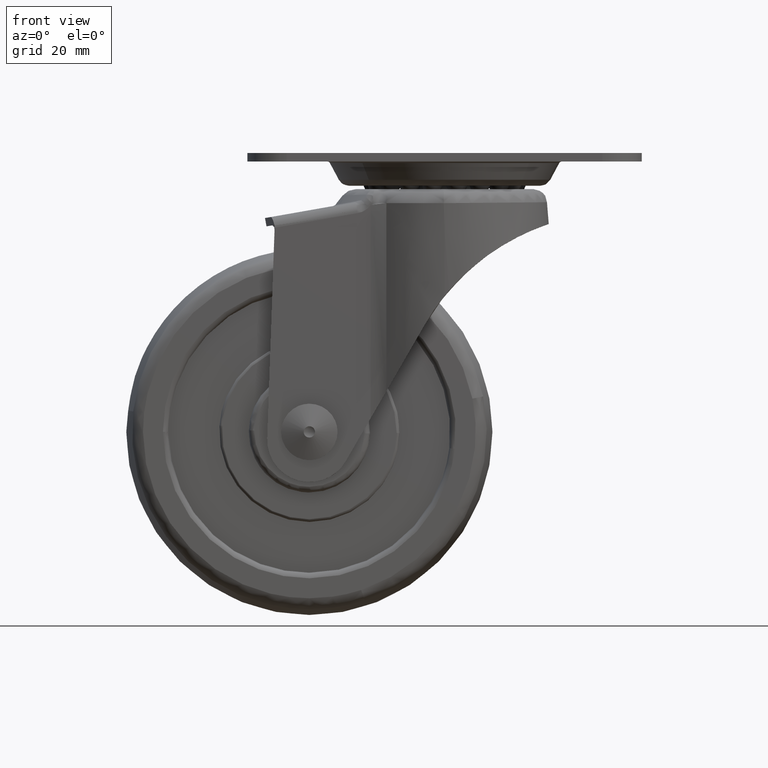
[diagram: clean part render]
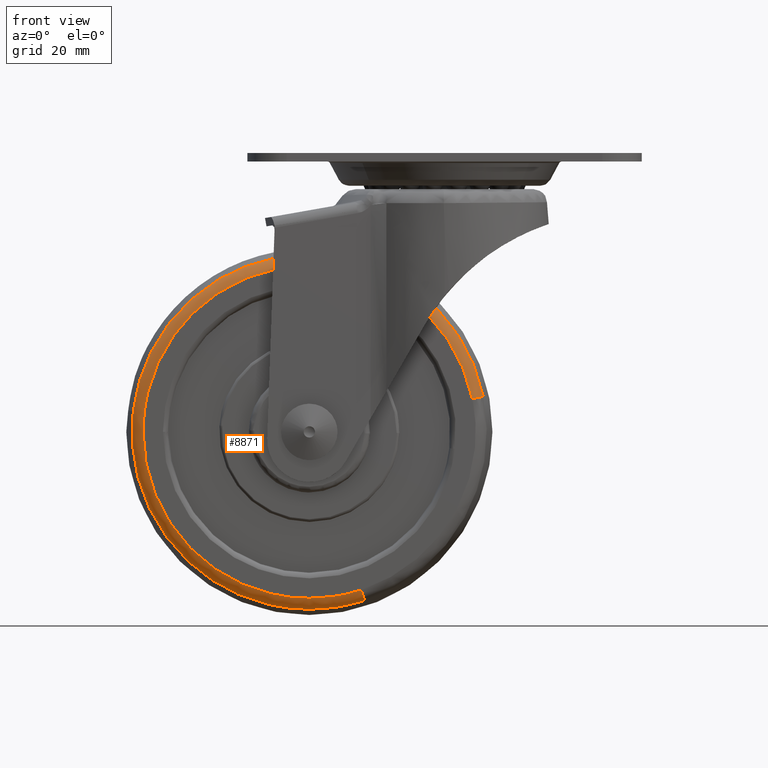
[diagram: same view with one face highlighted and labeled with its STEP entity id]
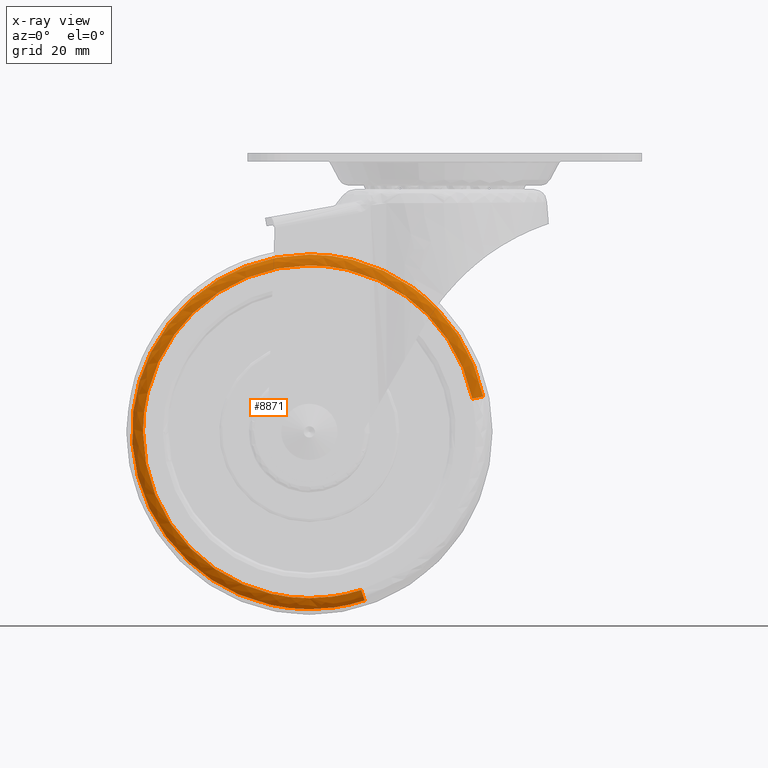
[diagram: x-ray of the same camera — body ghosted, the highlighted face saturated]
A machine part, front view. The second image highlights one B-rep face of the part: STEP entity #8871.
The next image is the same camera in x-ray: the body ghosted, the highlighted face saturated — about 0% of this face is hidden behind the body in this view.
In plain terms, the highlighted face is a freeform B-spline surface patch.
Its self-contained STEP definition (entity closure, byte-faithful):
#8637=CARTESIAN_POINT('',(-14.798811864278710,-10.499999999999190,-76.067432366033628));
#8638=VERTEX_POINT('',#8637);
#8639=CARTESIAN_POINT('',(4.942119317940643,-10.499999999999190,-42.101133641442523));
#8640=VERTEX_POINT('',#8639);
#8657=CARTESIAN_POINT('',(-14.191573362588580,-8.947367769147409,-77.919761408121445));
#8658=VERTEX_POINT('',#8657);
#8659=CARTESIAN_POINT('',(-14.191573362588580,-8.947367769147409,-77.919761408121445));
#8660=CARTESIAN_POINT('',(-14.208123989843360,-9.179608443915884,-77.869275137172238));
#8661=CARTESIAN_POINT('',(-14.253550823011780,-9.519793938101978,-77.730704473204824));
#8662=CARTESIAN_POINT('',(-14.366252597487909,-9.969467292586522,-77.386917362581087));
#8663=CARTESIAN_POINT('',(-14.483122434339901,-10.249450116788079,-77.030415934653263));
#8664=CARTESIAN_POINT('',(-14.637319609493320,-10.452179718093671,-76.560050658158147));
#8665=CARTESIAN_POINT('',(-14.737698107923100,-10.500079328496900,-76.253854645672249));
#8666=CARTESIAN_POINT('',(-14.798811864278710,-10.499999999999190,-76.067432366033628));
#8667=B_SPLINE_CURVE_WITH_KNOTS('',3,(#8659,#8660,#8661,#8662,#8663,#8664,#8665,#8666),.UNSPECIFIED.,.F.,.U.,(4,1,1,1,1,4),(0.000000177954667,0.714654869042726,1.093006143790763,1.723569530338279,2.101922708416972,2.690457079682224),.UNSPECIFIED.);
#8668=EDGE_CURVE('',#8658,#8638,#8667,.T.);
#8670=CARTESIAN_POINT('',(6.852175790700606,-8.947352225935532,-41.711833877447248));
#8671=VERTEX_POINT('',#8670);
#8689=CARTESIAN_POINT('',(6.852175790700606,-8.947352225935532,-41.711833877447248));
#8690=CARTESIAN_POINT('',(6.806205361034288,-9.152244627505027,-41.721203379160670));
#8691=CARTESIAN_POINT('',(6.665712374580973,-9.507476597260082,-41.749838075156489));
#8692=CARTESIAN_POINT('',(6.366020804351772,-9.895844149592540,-41.810919964201972));
#8693=CARTESIAN_POINT('',(6.037563293306014,-10.174543213730340,-41.877864807641977));
#8694=CARTESIAN_POINT('',(5.587295523746699,-10.422052849044940,-41.969636511223733));
#8695=CARTESIAN_POINT('',(5.189306663664128,-10.500251629033700,-42.050752944978527));
#8696=CARTESIAN_POINT('',(4.942119317940643,-10.499999999999190,-42.101133641442523));
#8697=B_SPLINE_CURVE_WITH_KNOTS('',3,(#8689,#8690,#8691,#8692,#8693,#8694,#8695,#8696),.UNSPECIFIED.,.F.,.U.,(4,1,1,1,1,4),(0.000000177959020,0.630578377911108,1.135070462833679,1.471351322218207,1.933773759987135,2.690471922495929),.UNSPECIFIED.);
#8698=EDGE_CURVE('',#8671,#8640,#8697,.T.);
#8703=CARTESIAN_POINT('',(6.875568226150024,-8.826322049927176,-41.707066128574866));
#8704=CARTESIAN_POINT('',(0.582638354724890,-8.826322049927175,-10.831497902424850));
#8705=CARTESIAN_POINT('',(-30.292929871425130,-8.826322049927176,-17.124427773849977));
#8706=CARTESIAN_POINT('',(-61.168498097575153,-8.826322049927175,-23.417357645275114));
#8707=CARTESIAN_POINT('',(-54.875568226150016,-8.826322049927176,-54.292925871425140));
#8708=CARTESIAN_POINT('',(-48.582638354724892,-8.826322049927175,-85.168494097575177));
#8709=CARTESIAN_POINT('',(-17.707070128574873,-8.826322049927176,-78.875564226150018));
#8710=CARTESIAN_POINT('',(-15.918577622268003,-8.826322049927175,-78.511041123763022));
#8711=CARTESIAN_POINT('',(-14.184136564937823,-8.826322049927173,-77.942449217439105));
#8712=CARTESIAN_POINT('',(6.587014757423360,-10.607014463284703,-41.765877896169009));
#8713=CARTESIAN_POINT('',(0.352896653592367,-10.607014463284701,-11.178863138745657));
#8714=CARTESIAN_POINT('',(-30.234118103830987,-10.607014463284703,-17.412981242576649));
#8715=CARTESIAN_POINT('',(-60.821132861254362,-10.607014463284701,-23.647099346407646));
#8716=CARTESIAN_POINT('',(-54.587014757423368,-10.607014463284703,-54.234114103830990));
#8717=CARTESIAN_POINT('',(-48.352896653592367,-10.607014463284701,-84.821128861254351));
#8718=CARTESIAN_POINT('',(-17.765881896169024,-10.607014463284703,-78.587010757423357));
#8719=CARTESIAN_POINT('',(-15.994104085206574,-10.607014463284701,-78.225894374707181));
#8720=CARTESIAN_POINT('',(-14.275872575170514,-10.607014463284704,-77.662616351699000));
#8721=CARTESIAN_POINT('',(4.821829898780981,-10.496228789470646,-42.125650530770436));
#8722=CARTESIAN_POINT('',(-1.052515570448589,-10.496228789470647,-13.303820631989458));
#8723=CARTESIAN_POINT('',(-29.874345469229564,-10.496228789470646,-19.178166101219027));
#8724=CARTESIAN_POINT('',(-58.696175368010536,-10.496228789470647,-25.052511570448583));
#8725=CARTESIAN_POINT('',(-52.821829898780983,-10.496228789470646,-53.874341469229563));
#8726=CARTESIAN_POINT('',(-46.947484429551423,-10.496228789470647,-82.696171368010539));
#8727=CARTESIAN_POINT('',(-18.125654530770433,-10.496228789470646,-76.821825898780986));
#8728=CARTESIAN_POINT('',(-16.456126494413102,-10.496228789470649,-76.481549639758910));
#8729=CARTESIAN_POINT('',(-14.837054587535812,-10.496228789470644,-75.950778543147607));
#8737=(BOUNDED_SURFACE()B_SPLINE_SURFACE(2,2,((#8703,#8712,#8721),(#8704,#8713,#8722),(#8705,#8714,#8723),(#8706,#8715,#8724),(#8707,#8716,#8725),(#8708,#8717,#8726),(#8709,#8718,#8727),(#8710,#8719,#8728),(#8711,#8720,#8729)),.UNSPECIFIED.,.F.,.F.,.U.)B_SPLINE_SURFACE_WITH_KNOTS((3,2,2,2,3),(3,3),(0.0,52.208044747548840,104.416089495097690,156.624134242646510,160.800776951134710),(0.0,3.076062430731187),.UNSPECIFIED.)GEOMETRIC_REPRESENTATION_ITEM()RATIONAL_B_SPLINE_SURFACE(((0.914737507832813,0.680622046625109,0.918856773515712),(0.646817094794265,0.481272464593681,0.649729855492152),(0.914737507832813,0.680622046625109,0.918856773515712),(0.646817094794265,0.481272464593681,0.649729855492152),(0.914737507832813,0.680622046625109,0.918856773515712),(0.646817094794265,0.481272464593681,0.649729855492152),(0.914737507832813,0.680622046625109,0.918856773515712),(0.893303879261133,0.664674083389600,0.897326624565367),(0.875299630545498,0.651277793739452,0.879241298728431)))REPRESENTATION_ITEM('')SURFACE());
#8738=CARTESIAN_POINT('',(-24.0,-10.499999999999201,-77.537139518365549));
#8739=VERTEX_POINT('',#8738);
#8740=CARTESIAN_POINT('',(-24.0,-10.499999999999201,-77.537139518365549));
#8741=CARTESIAN_POINT('',(-22.148094072960092,-10.499999999999210,-77.537381100900262));
#8742=CARTESIAN_POINT('',(-19.029228152820728,-10.499999999999210,-77.242751870018409));
#8743=CARTESIAN_POINT('',(-16.002835347550810,-10.499999999999170,-76.462181845108773));
#8744=CARTESIAN_POINT('',(-14.798811864278710,-10.499999999999190,-76.067432366033628));
#8745=B_SPLINE_CURVE_WITH_KNOTS('',3,(#8740,#8741,#8742,#8743,#8744),.UNSPECIFIED.,.F.,.U.,(4,1,4),(2.850456E-009,5.555659983644018,9.356912057926124),.UNSPECIFIED.);
#8746=EDGE_CURVE('',#8739,#8638,#8745,.T.);
#8747=ORIENTED_EDGE('',*,*,#8746,.F.);
#8748=CARTESIAN_POINT('',(-53.537143518365532,-10.499999999999201,-47.999997392671368));
#8749=VERTEX_POINT('',#8748);
#8750=CARTESIAN_POINT('',(-53.537143518365532,-10.499999999999201,-47.999997392671368));
#8751=CARTESIAN_POINT('',(-53.537266043453833,-10.499999999999201,-49.631141009030991));
#8752=CARTESIAN_POINT('',(-53.266246140437943,-10.499999999999160,-52.893390249552603));
#8753=CARTESIAN_POINT('',(-52.252423575449740,-10.499999999999240,-56.888922085510103));
#8754=CARTESIAN_POINT('',(-50.859529020772342,-10.499999999999201,-60.434664754679922));
#8755=CARTESIAN_POINT('',(-49.223102114787622,-10.499999999998900,-63.542036997566669));
#8756=CARTESIAN_POINT('',(-47.077786199496622,-10.499999999999231,-66.548678163689530));
#8757=CARTESIAN_POINT('',(-44.265219668326679,-10.499999999999320,-69.633019406535865));
#8758=CARTESIAN_POINT('',(-41.263818194648778,-10.499999999999011,-72.096215523555827));
#8759=CARTESIAN_POINT('',(-37.690019535345598,-10.499999999999410,-74.253016605399523));
#8760=CARTESIAN_POINT('',(-34.432995964221028,-10.499999999998920,-75.720750993976750));
#8761=CARTESIAN_POINT('',(-29.799395297004182,-10.499999999999231,-77.126517895347490));
#8762=CARTESIAN_POINT('',(-26.295722720218119,-10.499999999999440,-77.537620205298836));
#8763=CARTESIAN_POINT('',(-24.0,-10.499999999999201,-77.537139518365549));
#8764=B_SPLINE_CURVE_WITH_KNOTS('',3,(#8750,#8751,#8752,#8753,#8754,#8755,#8756,#8757,#8758,#8759,#8760,#8761,#8762,#8763),.UNSPECIFIED.,.F.,.U.,(4,1,1,1,1,1,1,1,1,1,1,4),(0.000000065253474,4.893421506834194,9.786845651967987,12.324182556749999,16.311415358411718,20.298689193555120,23.379650724656830,28.816828654080670,31.897871287441820,35.885114935083877,39.509888895973788,46.396908540899197),.UNSPECIFIED.);
#8765=EDGE_CURVE('',#8749,#8739,#8764,.T.);
#8766=ORIENTED_EDGE('',*,*,#8765,.F.);
#8767=CARTESIAN_POINT('',(-24.0,-10.499999999999201,-18.462852481634449));
#8768=VERTEX_POINT('',#8767);
#8769=CARTESIAN_POINT('',(-24.0,-10.499999999999201,-18.462852481634449));
#8770=CARTESIAN_POINT('',(-25.631142022837761,-10.499999999999160,-18.462743094571049));
#8771=CARTESIAN_POINT('',(-29.074634015869179,-10.499999999999270,-18.748748059729380));
#8772=CARTESIAN_POINT('',(-34.002563285036622,-10.499999999999201,-20.047461218199022));
#8773=CARTESIAN_POINT('',(-38.295319143036892,-10.499999999999149,-22.029858218837429));
#8774=CARTESIAN_POINT('',(-42.245529336933473,-10.499999999999190,-24.616955456593931));
#8775=CARTESIAN_POINT('',(-45.482137569119310,-10.499999999999300,-27.550352855574019));
#8776=CARTESIAN_POINT('',(-48.026144041136703,-10.499999999998989,-30.709418197554470));
#8777=CARTESIAN_POINT('',(-49.741200493772190,-10.499999999999460,-33.417781762787513));
#8778=CARTESIAN_POINT('',(-51.073744240177142,-10.499999999998940,-36.065112803429052));
#8779=CARTESIAN_POINT('',(-52.304952048345342,-10.499999999999210,-39.286039861739702));
#8780=CARTESIAN_POINT('',(-53.281249788061992,-10.499999999999741,-43.287868248971037));
#8781=CARTESIAN_POINT('',(-53.537280196300451,-10.499999999998259,-46.368860465087216));
#8782=CARTESIAN_POINT('',(-53.537143518365532,-10.499999999999201,-47.999997392671368));
#8783=B_SPLINE_CURVE_WITH_KNOTS('',3,(#8769,#8770,#8771,#8772,#8773,#8774,#8775,#8776,#8777,#8778,#8779,#8780,#8781,#8782),.UNSPECIFIED.,.F.,.U.,(4,1,1,1,1,1,1,1,1,1,1,4),(0.000000065217293,4.893421672485452,10.330562333433591,15.223997432407071,19.030018310240660,24.467115733679151,28.273107554722749,31.172918529505171,34.072728501464702,37.153787314744243,41.503517522273953,46.396910110766598),.UNSPECIFIED.);
#8784=EDGE_CURVE('',#8768,#8749,#8783,.T.);
#8785=ORIENTED_EDGE('',*,*,#8784,.F.);
#8786=CARTESIAN_POINT('',(4.942119317940643,-10.499999999999190,-42.101133641442523));
#8787=CARTESIAN_POINT('',(4.647575946447299,-10.499999999999201,-40.655820170478968));
#8788=CARTESIAN_POINT('',(3.726430490133233,-10.499999999999210,-37.402710366240569));
#8789=CARTESIAN_POINT('',(1.643790968305645,-10.499999999999190,-33.060199710362802));
#8790=CARTESIAN_POINT('',(-1.162769137985058,-10.499999999999190,-29.093422490891879));
#8791=CARTESIAN_POINT('',(-4.238258631942355,-10.499999999999160,-25.893257531141561));
#8792=CARTESIAN_POINT('',(-7.343833223027989,-10.499999999999210,-23.518905852423789));
#8793=CARTESIAN_POINT('',(-10.433505175891369,-10.499999999999179,-21.698790110952821));
#8794=CARTESIAN_POINT('',(-13.991100358577670,-10.499999999999099,-20.086905805861619));
#8795=CARTESIAN_POINT('',(-18.626700517957168,-10.499999999999240,-18.789628768860680));
#8796=CARTESIAN_POINT('',(-22.208884504405251,-10.499999999999270,-18.462682683565390));
#8797=CARTESIAN_POINT('',(-24.0,-10.499999999999201,-18.462852481634449));
#8798=B_SPLINE_CURVE_WITH_KNOTS('',3,(#8786,#8787,#8788,#8789,#8790,#8791,#8792,#8793,#8794,#8795,#8796,#8797),.UNSPECIFIED.,.F.,.U.,(4,1,1,1,1,1,1,1,1,4),(0.000000052643784,4.425087817489541,10.114522935963430,14.381593445324580,18.964736429187909,23.389800414790059,26.076500571175551,29.711409062922758,35.084759696866463,40.458089727965337),.UNSPECIFIED.);
#8799=EDGE_CURVE('',#8640,#8768,#8798,.T.);
#8800=ORIENTED_EDGE('',*,*,#8799,.F.);
#8801=ORIENTED_EDGE('',*,*,#8698,.F.);
#8802=CARTESIAN_POINT('',(-24.0,-8.947340870934173,-16.513522815849281));
#8803=VERTEX_POINT('',#8802);
#8804=CARTESIAN_POINT('',(6.852175790700606,-8.947352225935532,-41.711833877447248));
#8805=CARTESIAN_POINT('',(6.527034926504818,-8.947351517333038,-40.116090961403302));
#8806=CARTESIAN_POINT('',(5.597365363718685,-8.947350072797891,-36.866936916534733));
#8807=CARTESIAN_POINT('',(3.752628631350327,-8.947348322158206,-32.939706226433287));
#8808=CARTESIAN_POINT('',(1.727699656728038,-8.947346903070555,-29.763947161766389));
#8809=CARTESIAN_POINT('',(-0.732075995369698,-8.947345495034274,-26.619468398303560));
#8810=CARTESIAN_POINT('',(-3.831879063804434,-8.947344164223319,-23.658715147563790));
#8811=CARTESIAN_POINT('',(-7.198047736764933,-8.947343101153752,-21.306560780897801));
#8812=CARTESIAN_POINT('',(-10.095027746317429,-8.947342367905751,-19.692531614283940));
#8813=CARTESIAN_POINT('',(-12.881362088398379,-8.947341814797793,-18.483762674709030));
#8814=CARTESIAN_POINT('',(-16.256598331414459,-8.947341318239687,-17.411278137106109));
#8815=CARTESIAN_POINT('',(-19.900597830944740,-8.947340975642184,-16.690440200302259));
#8816=CARTESIAN_POINT('',(-22.652255092729789,-8.947340879589437,-16.513483098372539));
#8817=CARTESIAN_POINT('',(-24.0,-8.947340870934173,-16.513522815849281));
#8818=B_SPLINE_CURVE_WITH_KNOTS('',3,(#8804,#8805,#8806,#8807,#8808,#8809,#8810,#8811,#8812,#8813,#8814,#8815,#8816,#8817),.UNSPECIFIED.,.F.,.U.,(4,1,1,1,1,1,1,1,1,1,1,4),(0.000000052443596,4.885586119191387,10.108160314228741,12.972149998973739,16.173082004783890,22.069474093238579,25.775807759695400,28.471316147190919,32.009176216199748,34.873160235427392,39.084917208888847,43.128154558286013),.UNSPECIFIED.);
#8819=EDGE_CURVE('',#8671,#8803,#8818,.T.);
#8820=ORIENTED_EDGE('',*,*,#8819,.T.);
#8821=CARTESIAN_POINT('',(-55.275879273257722,-8.947364501282465,-44.364472963487692));
#8822=VERTEX_POINT('',#8821);
#8823=CARTESIAN_POINT('',(-24.0,-8.947340870934173,-16.513522815849281));
#8824=CARTESIAN_POINT('',(-26.207271323235950,-8.947341800933751,-16.513187744968679));
#8825=CARTESIAN_POINT('',(-29.607461652278850,-8.947343368602931,-16.872573069304501));
#8826=CARTESIAN_POINT('',(-33.814588269844258,-8.947345573585265,-18.024177717246548));
#8827=CARTESIAN_POINT('',(-36.821700086382613,-8.947347277720049,-19.188649492779469));
#8828=CARTESIAN_POINT('',(-40.290352208944661,-8.947349394053134,-20.933298554818741));
#8829=CARTESIAN_POINT('',(-43.540516565863442,-8.947351607630722,-23.182452137360990));
#8830=CARTESIAN_POINT('',(-46.534780804243539,-8.947353898999449,-25.926281860972018));
#8831=CARTESIAN_POINT('',(-48.790527708749011,-8.947355807074533,-28.478001019958342));
#8832=CARTESIAN_POINT('',(-50.639472444822040,-8.947357578467774,-31.122302412268048));
#8833=CARTESIAN_POINT('',(-52.575602883429092,-8.947359682150673,-34.554221274127933));
#8834=CARTESIAN_POINT('',(-54.298643636795610,-8.947362013730412,-38.832760584875153));
#8835=CARTESIAN_POINT('',(-55.062490353256479,-8.947363722052053,-42.527517966122069));
#8836=CARTESIAN_POINT('',(-55.275879273257722,-8.947364501282465,-44.364472963487692));
#8837=B_SPLINE_CURVE_WITH_KNOTS('',3,(#8823,#8824,#8825,#8826,#8827,#8828,#8829,#8830,#8831,#8832,#8833,#8834,#8835,#8836),.UNSPECIFIED.,.F.,.U.,(4,1,1,1,1,1,1,1,1,1,1,4),(0.000000055750057,6.621727110201675,10.201046395803271,13.064505803098781,16.285893774348018,21.833846090372511,24.876204050329971,28.455560758240772,32.034868126973826,34.540399003677287,40.267328589908232,45.815242802224148),.UNSPECIFIED.);
#8838=EDGE_CURVE('',#8803,#8822,#8837,.T.);
#8839=ORIENTED_EDGE('',*,*,#8838,.T.);
#8840=CARTESIAN_POINT('',(-24.0,-8.947368421051801,-79.486462861437403));
#8841=VERTEX_POINT('',#8840);
#8842=CARTESIAN_POINT('',(-55.275879273257722,-8.947364501282465,-44.364472963487692));
#8843=CARTESIAN_POINT('',(-55.475597283087247,-8.947364597088612,-46.081491136858418));
#8844=CARTESIAN_POINT('',(-55.570276651614819,-8.947364768799485,-48.924418130386712));
#8845=CARTESIAN_POINT('',(-55.134522294130932,-8.947365058784570,-53.195128876743141));
#8846=CARTESIAN_POINT('',(-54.166586044718599,-8.947365377470160,-57.453021343174441));
#8847=CARTESIAN_POINT('',(-52.577124120207067,-8.947365714448059,-61.451325490263500));
#8848=CARTESIAN_POINT('',(-50.502842139088841,-8.947366058386383,-65.129724955832287));
#8849=CARTESIAN_POINT('',(-48.057799094755460,-8.947366403225136,-68.492421535057460));
#8850=CARTESIAN_POINT('',(-45.139298753427362,-8.947366749751293,-71.460630064731930));
#8851=CARTESIAN_POINT('',(-41.699396348197070,-8.947367107314291,-74.141838365181485));
#8852=CARTESIAN_POINT('',(-37.886012382301061,-8.947367459990131,-76.411948993370771));
#8853=CARTESIAN_POINT('',(-33.753989044190519,-8.947367790409537,-78.040755766702858));
#8854=CARTESIAN_POINT('',(-29.047404858871580,-8.947368123124271,-79.194794863883175));
#8855=CARTESIAN_POINT('',(-26.005185718732161,-8.947368309922544,-79.486722535317725));
#8856=CARTESIAN_POINT('',(-24.0,-8.947368421051801,-79.486462861437403));
#8857=B_SPLINE_CURVE_WITH_KNOTS('',3,(#8842,#8843,#8844,#8845,#8846,#8847,#8848,#8849,#8850,#8851,#8852,#8853,#8854,#8855,#8856),.UNSPECIFIED.,.F.,.U.,(4,1,1,1,1,1,1,1,1,1,1,1,4),(0.000000062039312,5.185761754282154,8.504708817653189,12.860778730980670,18.254031924229849,21.365503234611300,25.514133001383140,30.699910349579302,33.811378541401943,38.582333408992042,43.975577857557283,47.087074790483548,53.102572850210620),.UNSPECIFIED.);
#8858=EDGE_CURVE('',#8822,#8841,#8857,.T.);
#8859=ORIENTED_EDGE('',*,*,#8858,.T.);
#8860=CARTESIAN_POINT('',(-24.0,-8.947368421051801,-79.486462861437403));
#8861=CARTESIAN_POINT('',(-22.077829748925041,-8.947368421139350,-79.486673442309311));
#8862=CARTESIAN_POINT('',(-18.753112906234790,-8.947368293943187,-79.180986411813905));
#8863=CARTESIAN_POINT('',(-15.524420115912120,-8.947367950975686,-78.356743827955995));
#8864=CARTESIAN_POINT('',(-14.191573362588580,-8.947367769147409,-77.919761408121445));
#8865=B_SPLINE_CURVE_WITH_KNOTS('',3,(#8860,#8861,#8862,#8863,#8864),.UNSPECIFIED.,.F.,.U.,(4,1,4),(2.694824E-009,5.766465099363153,9.974427663513923),.UNSPECIFIED.);
#8866=EDGE_CURVE('',#8841,#8658,#8865,.T.);
#8867=ORIENTED_EDGE('',*,*,#8866,.T.);
#8868=ORIENTED_EDGE('',*,*,#8668,.T.);
#8869=EDGE_LOOP('',(#8747,#8766,#8785,#8800,#8801,#8820,#8839,#8859,#8867,#8868));
#8870=FACE_OUTER_BOUND('',#8869,.T.);
#8871=ADVANCED_FACE('',(#8870),#8737,.T.);